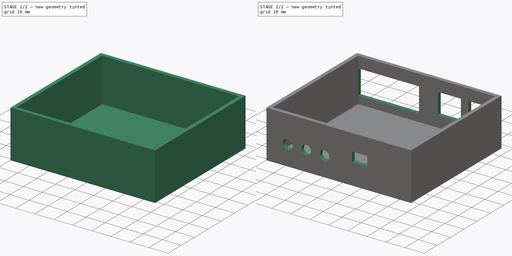
[diagram: build sequence overview — one tinted view per stage of 2, left to right]
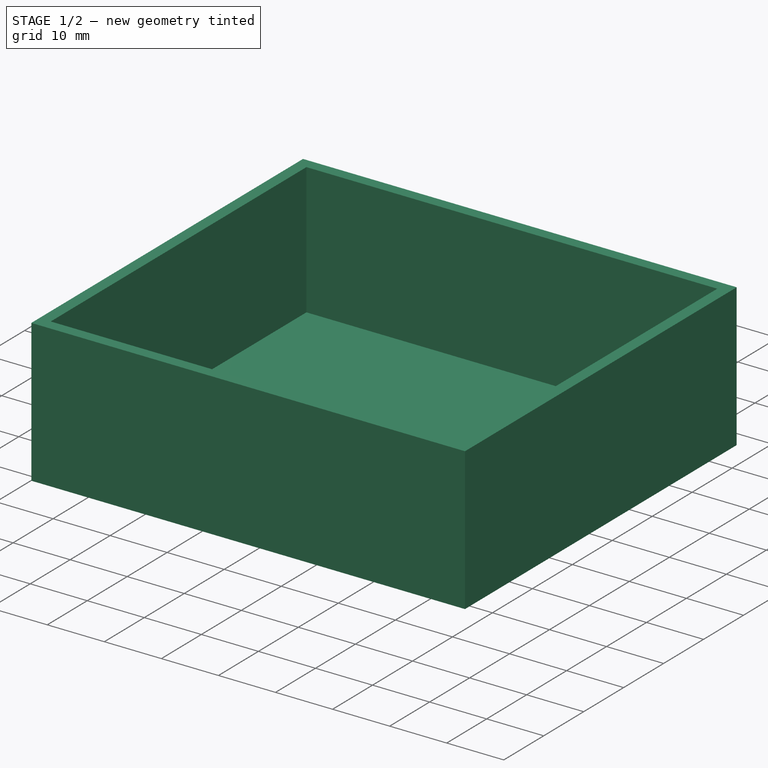
[diagram: stage 1 of 2 — iso view after this stage's code; geometry added in this stage tinted green]
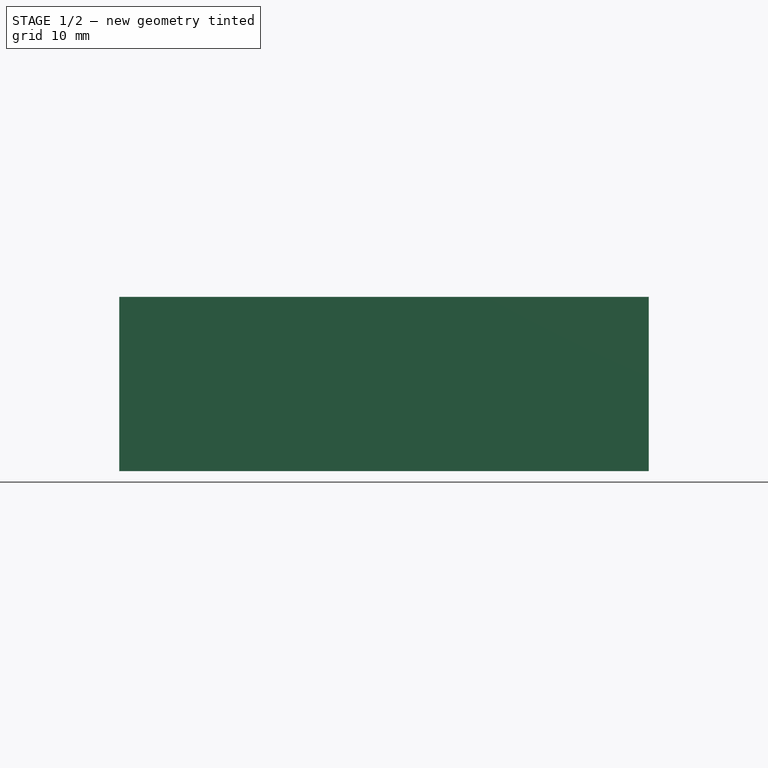
[diagram: stage 1 of 2 — front view after this stage's code; geometry added in this stage tinted green]
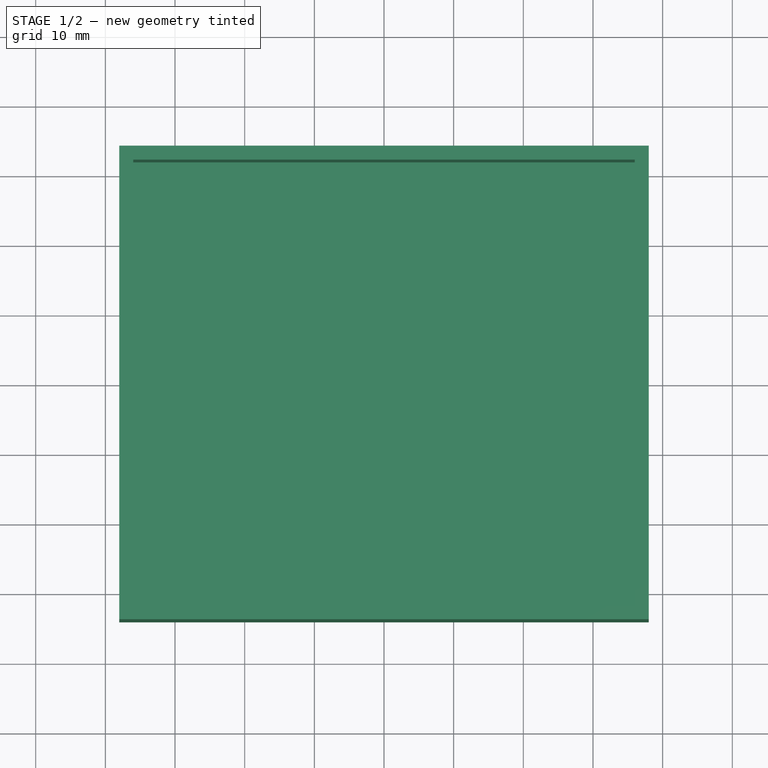
[diagram: stage 1 of 2 — top view after this stage's code; geometry added in this stage tinted green]
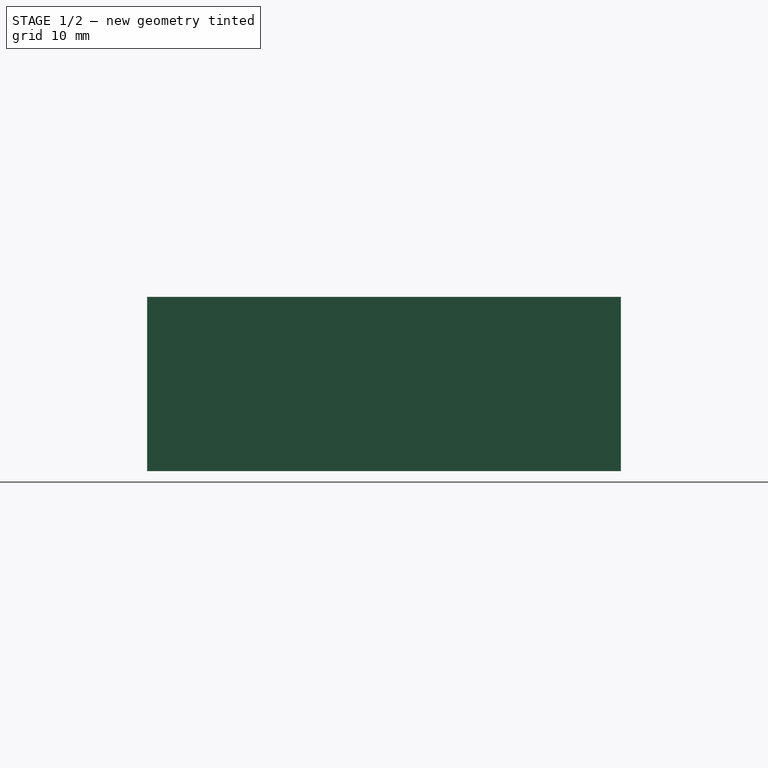
[diagram: stage 1 of 2 — right view after this stage's code; geometry added in this stage tinted green]
FCSTD DOCUMENT  (FreeCAD 0.19R24291 (Git))
Label: db9_box_bottom
License: All rights reserved
LicenseURL: http://en.wikipedia.org/wiki/All_rights_reserved
objects: Sketcher::SketchObject×4, PartDesign::Pocket×3, PartDesign::Pad×1, PartDesign::Body×1
note: 13 computed .brp shape members not serialized (recipe doc carries the construction recipe); baked Part::Feature solids carry a one-line shape summary decoded from their .brp

FEATURE [Sketcher::SketchObject] Sketch
  FullyConstrained = true
  MapMode = 5
  Support = -> [XY_Plane]
  sketch-geometry (4):
    g0: LineSegment StartX=-38 StartY=34 StartZ=0 EndX=38 EndY=34 EndZ=0
    g1: LineSegment StartX=38 StartY=34 StartZ=0 EndX=38 EndY=-34 EndZ=0
    g2: LineSegment StartX=38 StartY=-34 StartZ=0 EndX=-38 EndY=-34 EndZ=0
    g3: LineSegment StartX=-38 StartY=-34 StartZ=0 EndX=-38 EndY=34 EndZ=0
  constraints (10):
    c: Coincident(g0,g1)
    c: Coincident(g1,g2)
    c: Coincident(g2,g3)
    c: Coincident(g3,g0)
    c: Horizontal(g2)
    c: Vertical(g3)
    c: DistanceX(g2,g2) = 76
    c: DistanceY(g1,g1) = 68
    c: Symmetric(g0,g1,g-1)
    c: Symmetric(g0,g0,g-2)
FEATURE [PartDesign::Pad] Pad
  Direction = (1,1,1)
  Length = 25
  Length2 = 100
  Profile = -> Sketch
  Refine = true
  Type = 0
FEATURE [Sketcher::SketchObject] Sketch001
  AttachmentOffset = pos=(0,0,2) rot=(0,0,1;0rad)
  ExternalGeometry = -> [Pad]
  FullyConstrained = true
  MapMode = 5
  Placement = pos=(0,0,2) rot=(0,0,1;0rad)
  Support = -> [XY_Plane]
  sketch-geometry (4):
    g0: LineSegment StartX=-36 StartY=32 StartZ=0 EndX=36 EndY=32 EndZ=0
    g1: LineSegment StartX=36 StartY=32 StartZ=0 EndX=36 EndY=-32 EndZ=0
    g2: LineSegment StartX=36 StartY=-32 StartZ=0 EndX=-36 EndY=-32 EndZ=0
    g3: LineSegment StartX=-36 StartY=-32 StartZ=0 EndX=-36 EndY=32 EndZ=0
  constraints (12):
    c: Coincident(g0,g1)
    c: Coincident(g1,g2)
    c: Coincident(g2,g3)
    c: Coincident(g3,g0)
    c: Horizontal(g0)
    c: Horizontal(g2)
    c: Vertical(g1)
    c: Vertical(g3)
    c: DistanceY(g-4,g1) = 2
    c: DistanceY(g0,g-3) = 2
    c: DistanceX(g-3,g0) = 2
    c: DistanceX(g1,g-4) = 2
FEATURE [PartDesign::Pocket] Pocket
  BaseFeature = -> Pad
  Length = 23
  Length2 = 100
  Profile = -> Sketch001
  Refine = true
  Reversed = true
  Type = 0
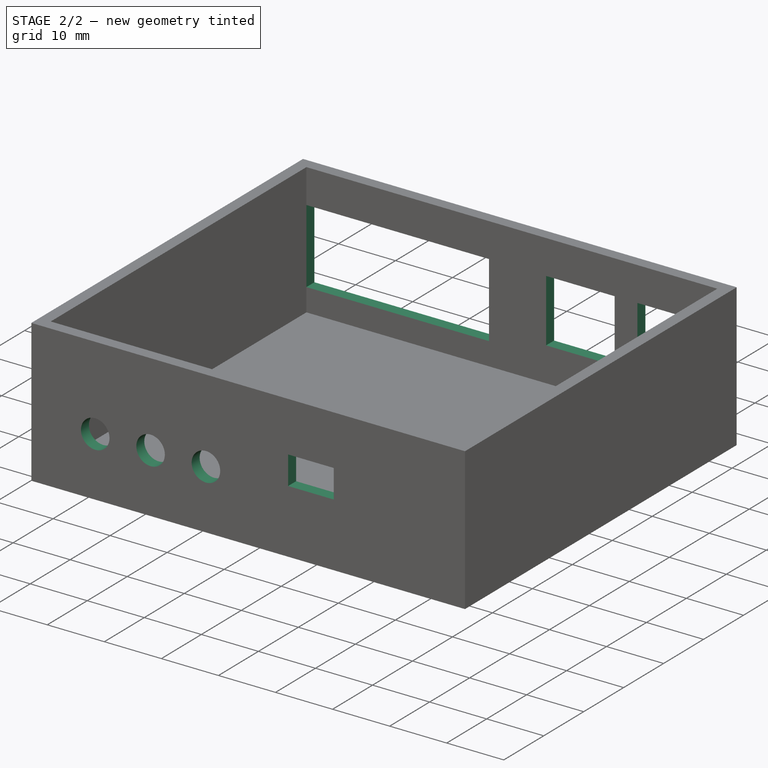
[diagram: stage 2 of 2 — iso view after this stage's code; geometry added in this stage tinted green]
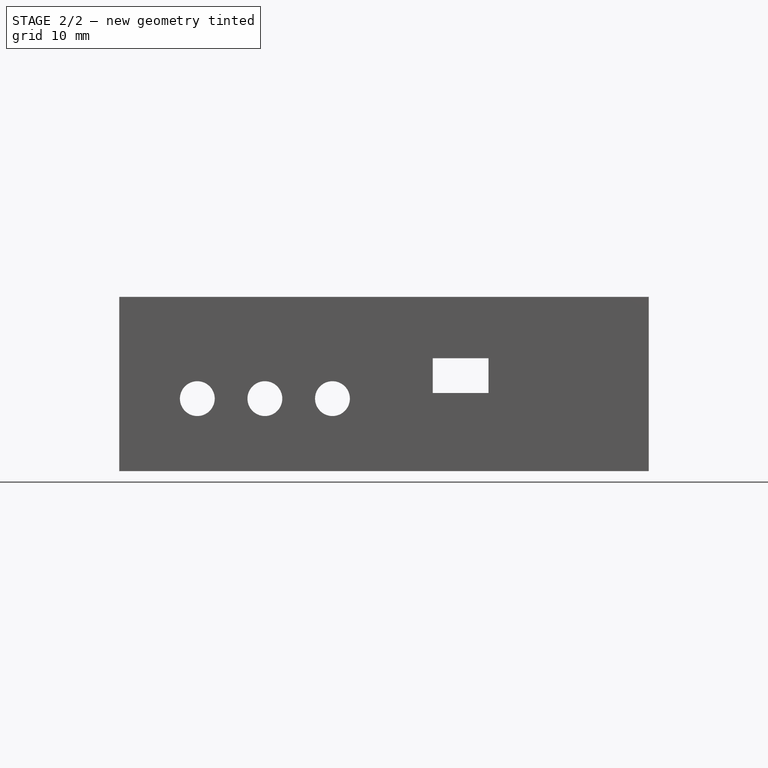
[diagram: stage 2 of 2 — front view after this stage's code; geometry added in this stage tinted green]
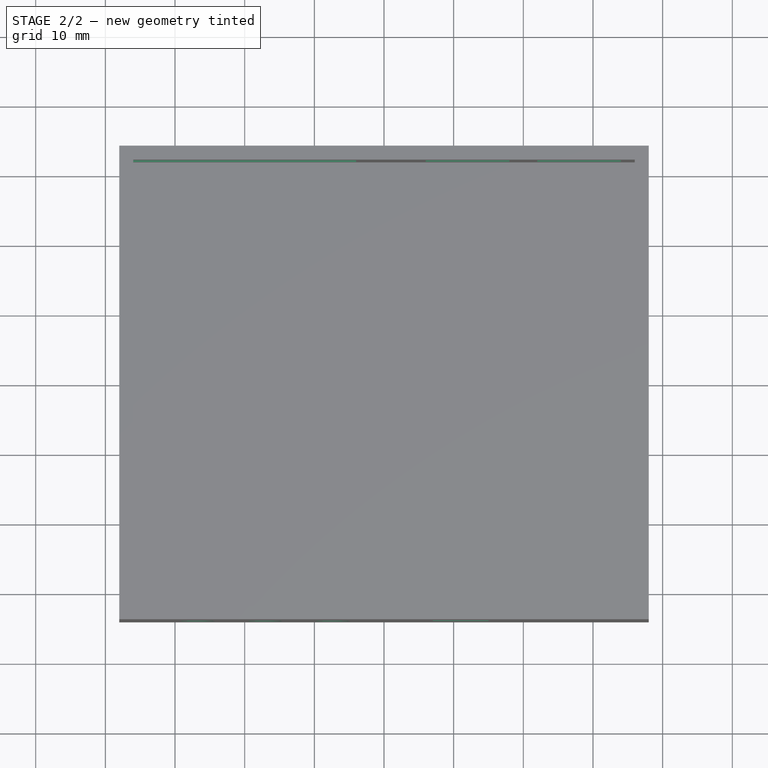
[diagram: stage 2 of 2 — top view after this stage's code; geometry added in this stage tinted green]
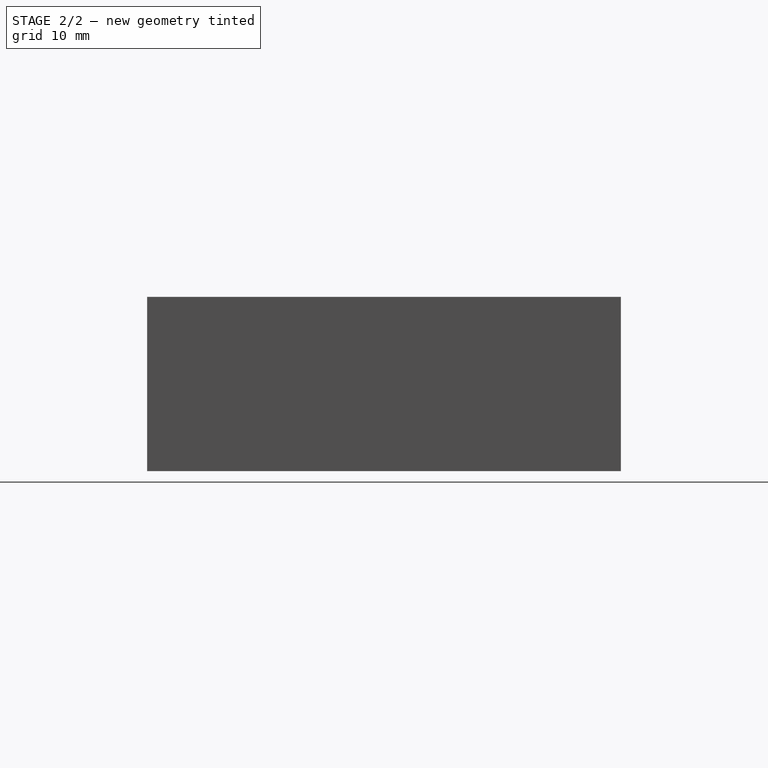
[diagram: stage 2 of 2 — right view after this stage's code; geometry added in this stage tinted green]
FEATURE [Sketcher::SketchObject] Sketch002
  AttachmentOffset = pos=(0,0,34) rot=(0,0,1;0rad)
  ExternalGeometry = -> [Pocket]
  FullyConstrained = true
  MapMode = 5
  Placement = pos=(0,-34,7.5e-15) rot=(1,0,0;1.5708rad)
  Support = -> [XZ_Plane]
  sketch-geometry (7):
    g0: LineSegment StartX=7 StartY=16.2 StartZ=0 EndX=15 EndY=16.2 EndZ=0
    g1: LineSegment StartX=15 StartY=16.2 StartZ=0 EndX=15 EndY=11.2 EndZ=0
    g2: LineSegment StartX=15 StartY=11.2 StartZ=0 EndX=7 EndY=11.2 EndZ=0
    g3: LineSegment StartX=7 StartY=11.2 StartZ=0 EndX=7 EndY=16.2 EndZ=0
    g4: Circle CenterX=-7.4 CenterY=10.4 CenterZ=0 NormalX=0 NormalY=0 NormalZ=1 AngleXU=0 Radius=2.5
    g5: Circle CenterX=-17.1 CenterY=10.4 CenterZ=0 NormalX=0 NormalY=0 NormalZ=1 AngleXU=0 Radius=2.5
    g6: Circle CenterX=-26.8 CenterY=10.4 CenterZ=0 NormalX=0 NormalY=0 NormalZ=1 AngleXU=0 Radius=2.5
  constraints (21):
    c: Coincident(g0,g1)
    c: Coincident(g1,g2)
    c: Coincident(g2,g3)
    c: Coincident(g3,g0)
    c: Horizontal(g0)
    c: Horizontal(g2)
    c: Vertical(g1)
    c: Vertical(g3)
    c: DistanceX(g0,g0) = 8
    c: DistanceY(g1,g1) = 5
    c: Radius(g4) = 2.5
    c: Equal(g5,g4)
    c: Equal(g6,g4)
    c: Horizontal(g4,g5)
    c: Horizontal(g5,g6)
    c: DistanceX(g5,g4) = 9.7
    c: DistanceX(g6,g5) = 9.7
    c: DistanceX(g-3,g6) = 9.2
    c: DistanceX(g0,g-4) = 21
    c: DistanceY(g-4,g1) = 9.2
    c: DistanceY(g-3,g4) = 8.4
FEATURE [PartDesign::Pocket] Pocket001
  BaseFeature = -> Pocket
  Length = 2
  Length2 = 100
  Profile = -> Sketch002
  Refine = true
  Type = 0
FEATURE [Sketcher::SketchObject] Sketch003
  AttachmentOffset = pos=(0,0,-34) rot=(0,0,1;0rad)
  ExternalGeometry = -> [Pocket001]
  FullyConstrained = true
  MapMode = 5
  Placement = pos=(0,34,-7.5e-15) rot=(1,0,0;1.5708rad)
  Support = -> [XZ_Plane]
  sketch-geometry (12):
    g0: LineSegment StartX=-4 StartY=19 StartZ=0 EndX=-36 EndY=19 EndZ=0
    g1: LineSegment StartX=-36 StartY=19 StartZ=0 EndX=-36 EndY=6 EndZ=0
    g2: LineSegment StartX=-36 StartY=6 StartZ=0 EndX=-4 EndY=6 EndZ=0
    g3: LineSegment StartX=-4 StartY=6 StartZ=0 EndX=-4 EndY=19 EndZ=0
    g4: LineSegment StartX=18 StartY=19 StartZ=0 EndX=6 EndY=19 EndZ=0
    g5: LineSegment StartX=6 StartY=19 StartZ=0 EndX=6 EndY=8 EndZ=0
    g6: LineSegment StartX=6 StartY=8 StartZ=0 EndX=18 EndY=8 EndZ=0
    g7: LineSegment StartX=18 StartY=8 StartZ=0 EndX=18 EndY=19 EndZ=0
    g8: LineSegment StartX=34 StartY=19 StartZ=0 EndX=22 EndY=19 EndZ=0
    g9: LineSegment StartX=22 StartY=19 StartZ=0 EndX=22 EndY=8 EndZ=0
    g10: LineSegment StartX=22 StartY=8 StartZ=0 EndX=34 EndY=8 EndZ=0
    g11: LineSegment StartX=34 StartY=8 StartZ=0 EndX=34 EndY=19 EndZ=0
  constraints (36):
    c: Coincident(g0,g1)
    c: Coincident(g1,g2)
    c: Coincident(g2,g3)
    c: Coincident(g3,g0)
    c: Horizontal(g0)
    c: Horizontal(g2)
    c: Vertical(g1)
    c: Vertical(g3)
    c: DistanceY(g1,g1) = 13
    c: DistanceX(g0,g0) = 32
    c: Coincident(g4,g5)
    c: Coincident(g5,g6)
    c: Coincident(g6,g7)
    c: Coincident(g7,g4)
    c: Horizontal(g4)
    c: Horizontal(g6)
    c: Vertical(g5)
    c: Vertical(g7)
    c: DistanceX(g4,g4) = 12
    c: DistanceY(g5,g5) = 11
    c: Coincident(g8,g9)
    c: Coincident(g9,g10)
    c: Coincident(g10,g11)
    c: Coincident(g11,g8)
    c: Horizontal(g8)
    c: Horizontal(g10)
    c: Vertical(g9)
    c: Vertical(g11)
    c: DistanceX(g8,g8) = 12
    c: DistanceY(g9,g9) = 11
    c: Horizontal(g9,g6)
    c: DistanceY(g-3,g5) = 6
    c: DistanceY(g-3,g1) = 4
    c: DistanceX(g4,g8) = 4
    c: DistanceX(g10,g-3) = 2
    c: DistanceX(g-3,g1) = 0
FEATURE [PartDesign::Pocket] Pocket002
  BaseFeature = -> Pocket001
  Length = 2
  Length2 = 100
  Profile = -> Sketch003
  Refine = true
  Reversed = true
  Type = 0
FEATURE [PartDesign::Body] Body
  Group = -> [Sketch,Pad,Sketch001,Pocket,Sketch002,Pocket001,Sketch003,Pocket002]
  Origin = -> Origin
  Tip = -> Pocket002
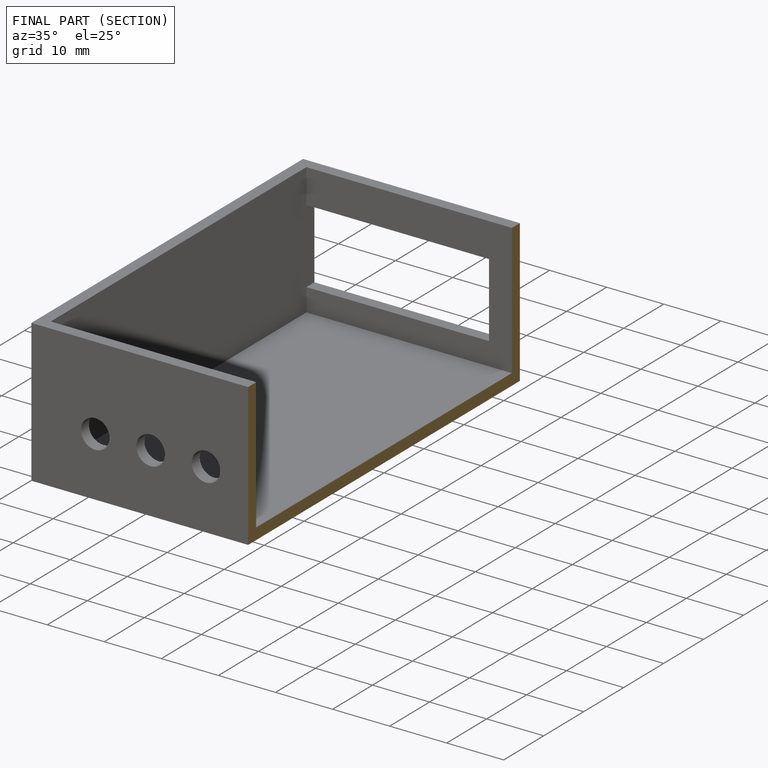
[diagram: finished part — half-section view (interior)]
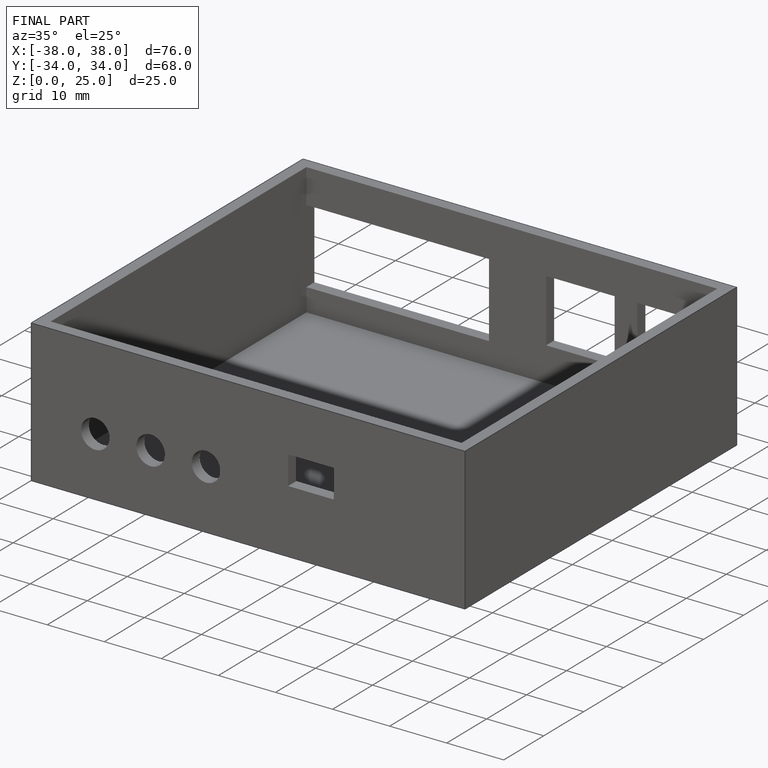
[diagram: finished part — iso view with bounding-box wireframe]
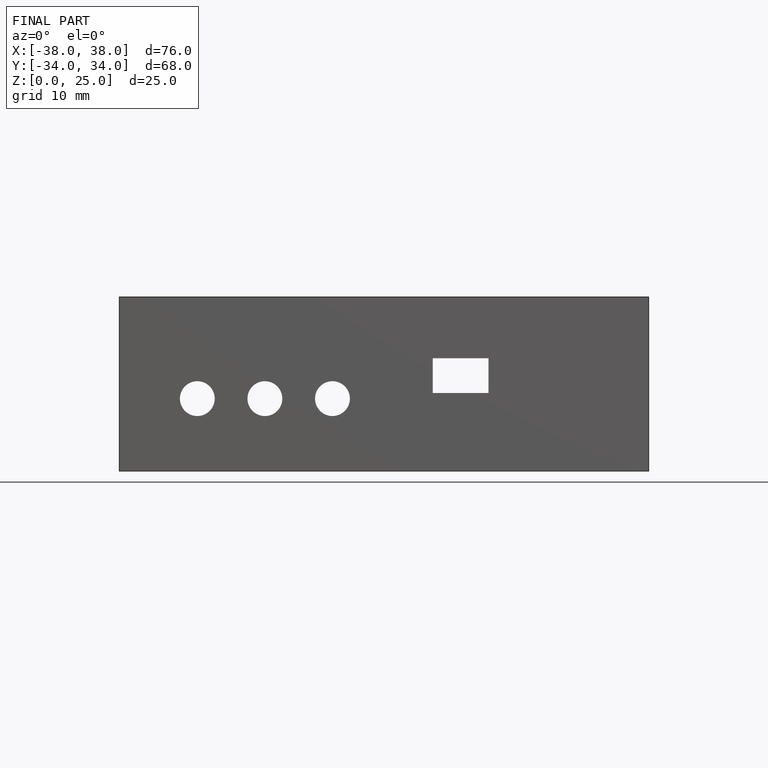
[diagram: finished part — front view with bounding-box wireframe]
